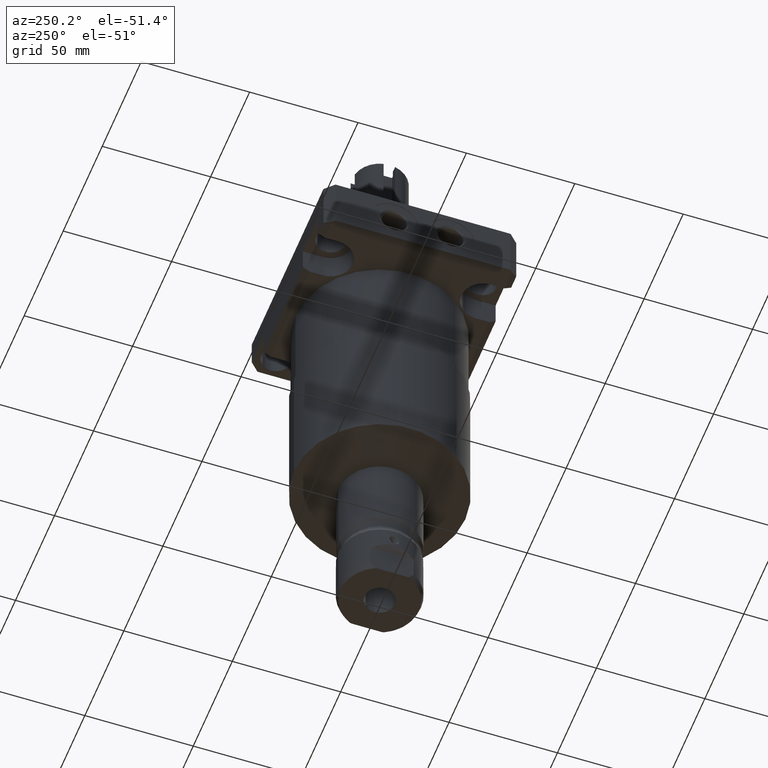
[diagram: clean part render]
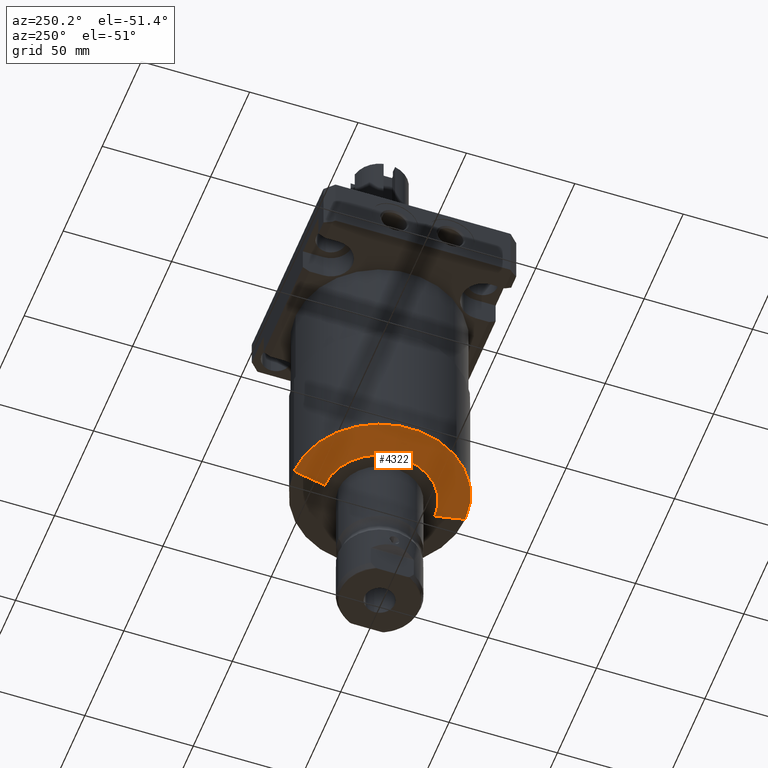
[diagram: same view with one face highlighted and labeled with its STEP entity id]
A machine part, auxiliary view. The second image highlights one B-rep face of the part: STEP entity #4322.
In plain terms, the highlighted conical surface has half-angle 75 deg.
Its self-contained STEP definition (entity closure, byte-faithful):
#1063=CARTESIAN_POINT('',(0.E0,0.E0,-1.084838875299E2));
#1064=DIRECTION('',(0.E0,0.E0,-1.E0));
#1065=DIRECTION('',(0.E0,-1.E0,0.E0));
#1066=AXIS2_PLACEMENT_3D('',#1063,#1064,#1065);
#1068=CARTESIAN_POINT('',(0.E0,0.E0,-1.12268E2));
#1069=DIRECTION('',(0.E0,0.E0,-1.E0));
#1070=DIRECTION('',(0.E0,-1.E0,0.E0));
#1071=AXIS2_PLACEMENT_3D('',#1068,#1069,#1070);
#1088=DIRECTION('',(0.E0,-9.659258262891E-1,2.588190451025E-1));
#1089=VECTOR('',#1088,1.462068785784E1);
#1090=CARTESIAN_POINT('',(0.E0,-2.54E1,-1.12268E2));
#1091=LINE('',#1090,#1089);
#1097=DIRECTION('',(0.E0,9.659258262891E-1,2.588190451025E-1));
#1098=VECTOR('',#1097,1.462068785784E1);
#1099=CARTESIAN_POINT('',(0.E0,2.54E1,-1.12268E2));
#1100=LINE('',#1099,#1098);
#2947=CARTESIAN_POINT('',(0.E0,-2.54E1,-1.12268E2));
#2948=CARTESIAN_POINT('',(0.E0,2.54E1,-1.12268E2));
#2949=VERTEX_POINT('',#2947);
#2950=VERTEX_POINT('',#2948);
#2951=CARTESIAN_POINT('',(0.E0,-3.95225E1,-1.084838875299E2));
#2952=CARTESIAN_POINT('',(0.E0,3.95225E1,-1.084838875299E2));
#2953=VERTEX_POINT('',#2951);
#2954=VERTEX_POINT('',#2952);
#4308=CARTESIAN_POINT('',(0.E0,0.E0,-1.103759437649E2));
#4309=DIRECTION('',(0.E0,0.E0,1.E0));
#4310=DIRECTION('',(0.E0,1.E0,0.E0));
#4311=AXIS2_PLACEMENT_3D('',#4308,#4309,#4310);
#4312=CONICAL_SURFACE('',#4311,3.246125E1,7.5E1);
#4314=ORIENTED_EDGE('',*,*,#4313,.T.);
#4316=ORIENTED_EDGE('',*,*,#4315,.T.);
#4317=ORIENTED_EDGE('',*,*,#4298,.F.);
#4319=ORIENTED_EDGE('',*,*,#4318,.F.);
#4320=EDGE_LOOP('',(#4314,#4316,#4317,#4319));
#4321=FACE_OUTER_BOUND('',#4320,.F.);
#1067=CIRCLE('',#1066,3.95225E1);
#1072=CIRCLE('',#1071,2.54E1);
#4298=EDGE_CURVE('',#2953,#2954,#1067,.T.);
#4313=EDGE_CURVE('',#2949,#2950,#1072,.T.);
#4315=EDGE_CURVE('',#2950,#2954,#1100,.T.);
#4318=EDGE_CURVE('',#2949,#2953,#1091,.T.);
#4322=ADVANCED_FACE('',(#4321),#4312,.T.);